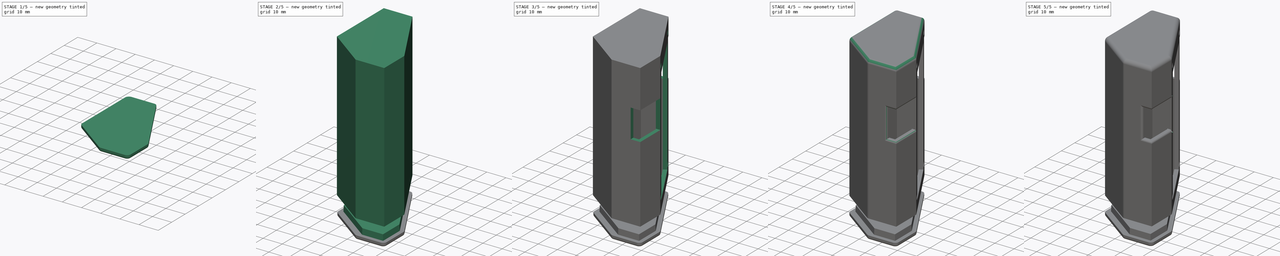
[diagram: build sequence overview — one tinted view per stage of 5, left to right]
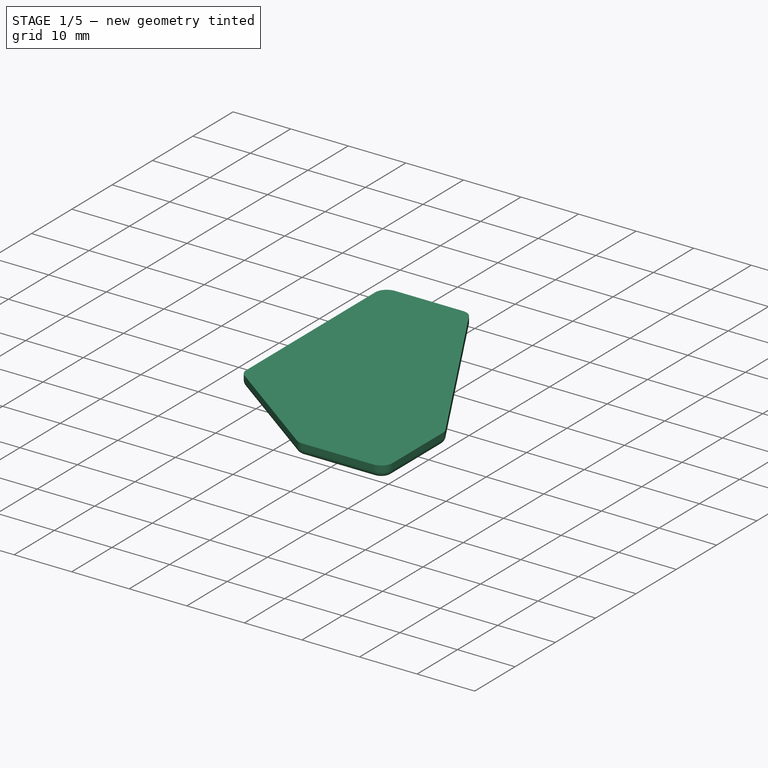
[diagram: stage 1 of 5 — iso view after this stage's code; geometry added in this stage tinted green]
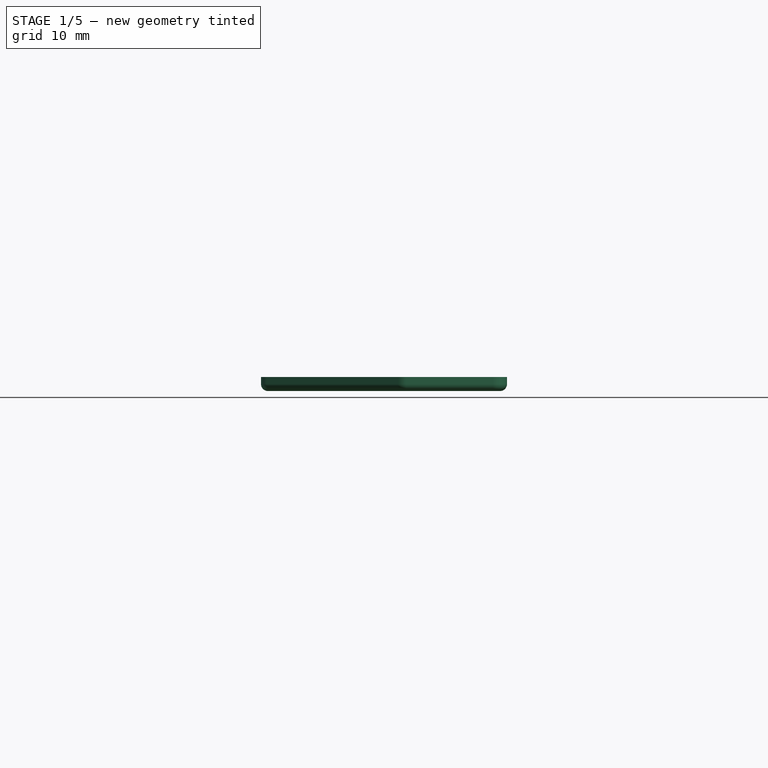
[diagram: stage 1 of 5 — front view after this stage's code; geometry added in this stage tinted green]
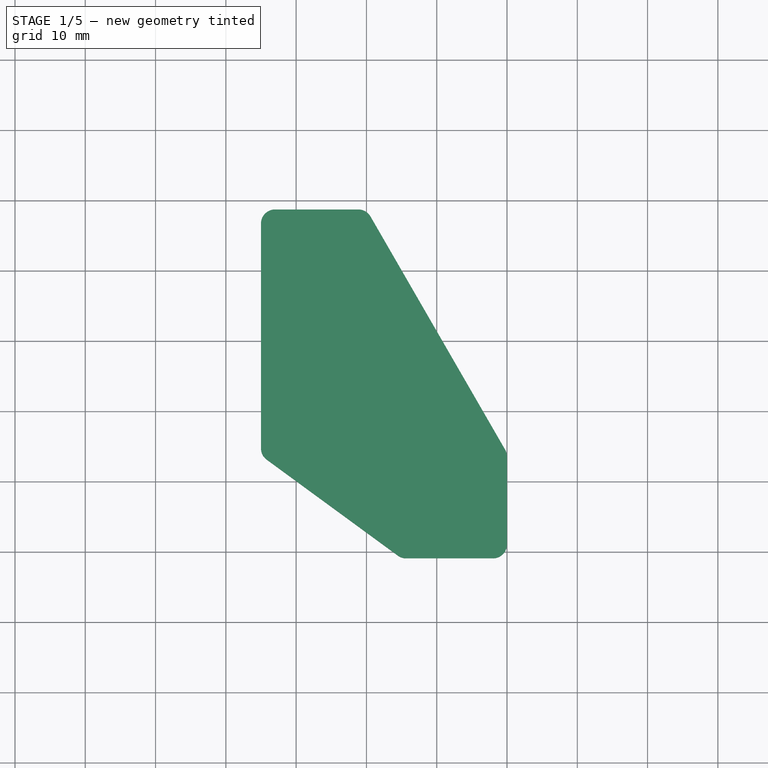
[diagram: stage 1 of 5 — top view after this stage's code; geometry added in this stage tinted green]
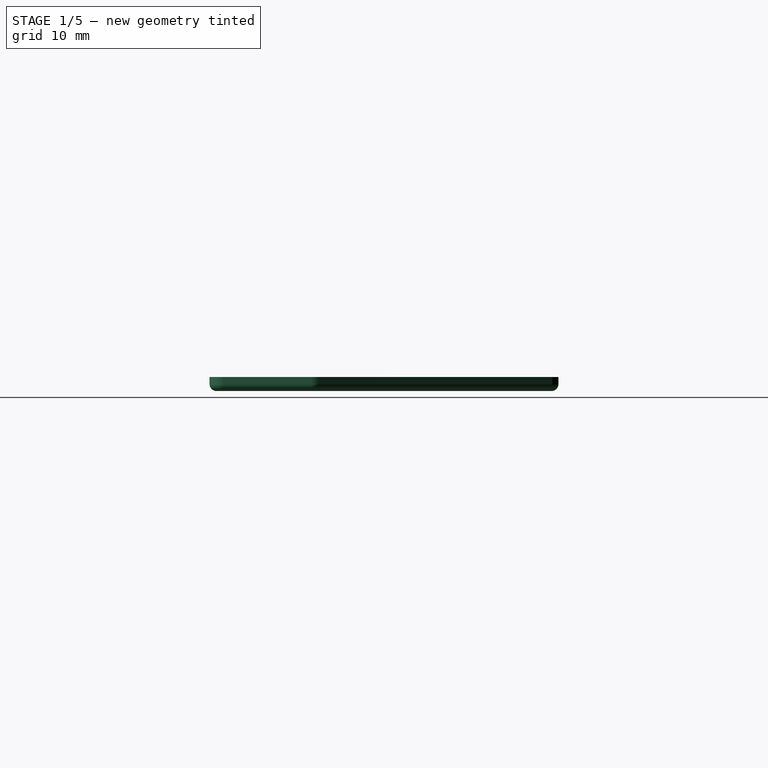
[diagram: stage 1 of 5 — right view after this stage's code; geometry added in this stage tinted green]
FCSTD DOCUMENT  (FreeCAD 0.19R21329 (Git))
Label: ePaperCalendar_Box
License: All rights reserved
LicenseURL: http://en.wikipedia.org/wiki/All_rights_reserved
objects: Sketcher::SketchObject×8, Part::Fillet×7, PartDesign::Pocket×5, PartDesign::Pad×2, PartDesign::Body×2, Spreadsheet::Sheet×1, PartDesign::ShapeBinder×1, Part::Extrusion×1
note: 33 computed .brp shape members not serialized (recipe doc carries the construction recipe); baked Part::Feature solids carry a one-line shape summary decoded from their .brp

FEATURE [Sketcher::SketchObject] Sketch008  label="Sketch_Base"
  AttachmentOffset = pos=(0,0,-10) rot=(0,0,1;0rad)
  MapMode = 5
  Placement = pos=(0,0,-10) rot=(0,0,1;0rad)
  Support = -> [XY_Plane001]
  expr: Constraints[9] = Sketch.Constraints[9]
  expr: Constraints[10] = Sketch.Constraints[10]
  expr: Constraints[13] = Sketch.Constraints[13]
  expr: Constraints[15] = Sketch.Constraints[15]
  expr: Constraints[16] = Sketch.Constraints[16]
  sketch-geometry (6):
    g0: LineSegment StartX=-15 StartY=28.7253 StartZ=0 EndX=-15 EndY=-6.27467 EndZ=0
    g1: LineSegment StartX=5 StartY=-20.9157 StartZ=0 EndX=20 EndY=-20.9157 EndZ=0
    g2: LineSegment StartX=20 StartY=-20.9157 StartZ=0 EndX=20 EndY=-5.91569 EndZ=0
    g3: LineSegment StartX=20 StartY=-5.91569 StartZ=0 EndX=0 EndY=28.7253 EndZ=0
    g4: LineSegment StartX=0 StartY=28.7253 StartZ=0 EndX=-15 EndY=28.7253 EndZ=0
    g5: LineSegment StartX=-15 StartY=-6.27467 StartZ=0 EndX=5 EndY=-20.9157 EndZ=0
  constraints (17):
    c: Vertical(g0)
    c: Horizontal(g1)
    c: Coincident(g1,g2)
    c: Vertical(g2)
    c: Coincident(g2,g3)
    c: PointOnObject(g3,g-2)
    c: Coincident(g3,g4)
    c: Coincident(g4,g0)
    c: Horizontal(g4)
    c: Angle(g3,g-1) = 1.0472
    c: Distance(g3) = 40
    c: Coincident(g1,g5)
    c: Coincident(g0,g5)
    c: Distance(g0,g3) = 15
    c: Equal(g2,g4)
    c: Distance(g0) = 35
    c: Distance(g1) = 15
FEATURE [PartDesign::Pad] Pad002
  Length = 2
  Length2 = 100
  Profile = -> Sketch008
  Type = 0
FEATURE [Part::Fillet] Fillet005
  Base = -> Pad002
  Edges = 6 edges r=2: [Edge1,Edge2,Edge5,Edge8,Edge11,Edge14]
FEATURE [Part::Fillet] Fillet006
  Base = -> Fillet005
  Edges = 12 edges r=1: [Edge1,Edge5,Edge6,Edge7,Edge8,Edge9,Edge10,Edge11,Edge12,Edge13,Edge14,Edge15]
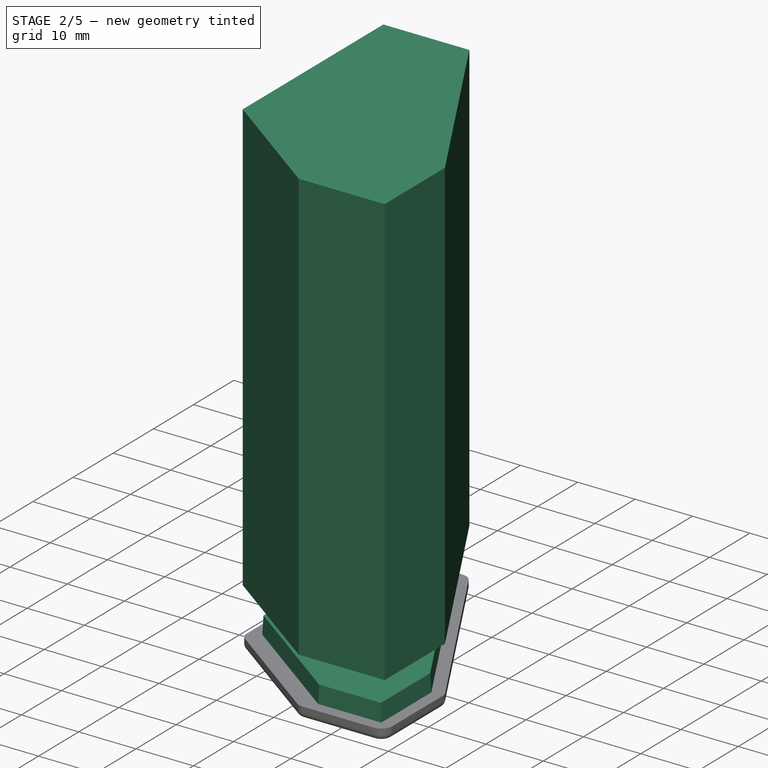
[diagram: stage 2 of 5 — iso view after this stage's code; geometry added in this stage tinted green]
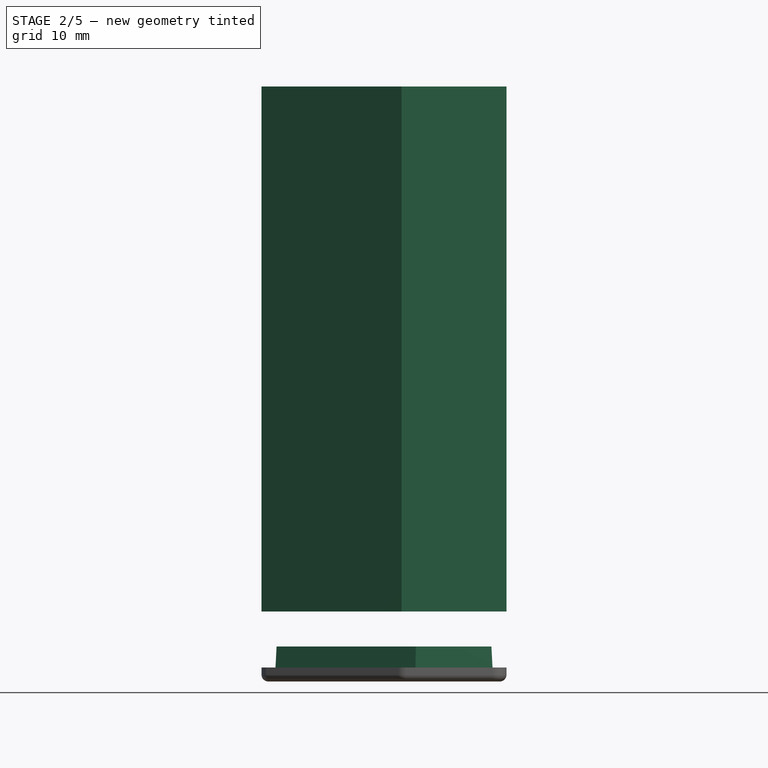
[diagram: stage 2 of 5 — front view after this stage's code; geometry added in this stage tinted green]
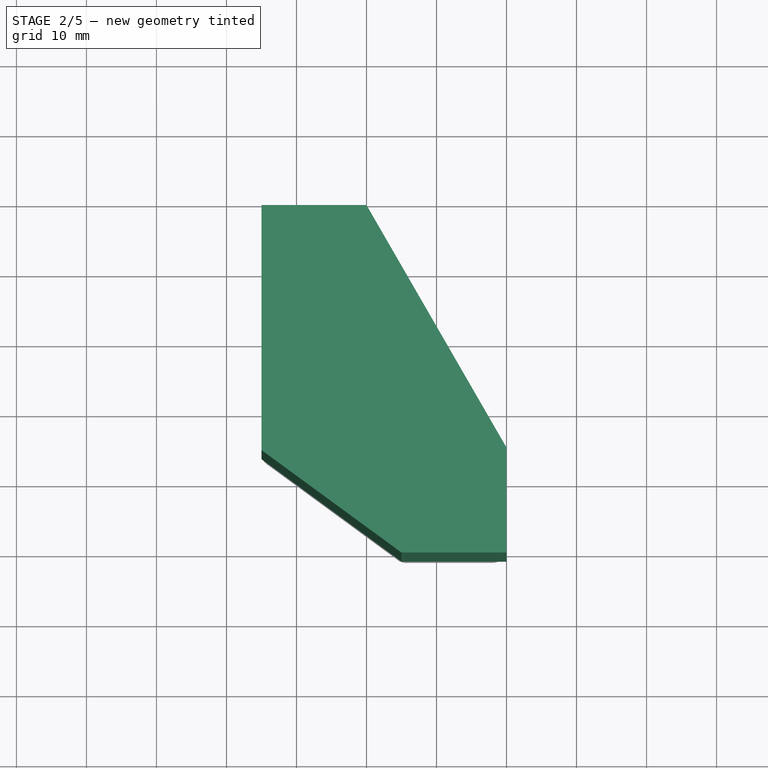
[diagram: stage 2 of 5 — top view after this stage's code; geometry added in this stage tinted green]
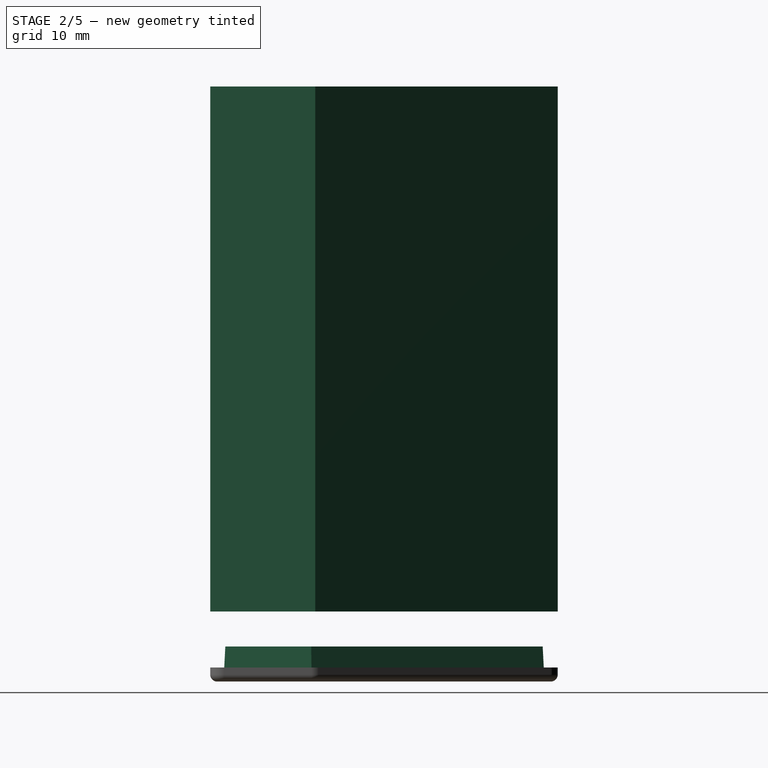
[diagram: stage 2 of 5 — right view after this stage's code; geometry added in this stage tinted green]
FEATURE [Sketcher::SketchObject] Sketch  label="Sketch_Side_Pad"
  sketch-geometry (6):
    g0: LineSegment StartX=-15 StartY=28.7253 StartZ=0 EndX=-15 EndY=-6.27467 EndZ=0
    g1: LineSegment StartX=5 StartY=-20.9157 StartZ=0 EndX=20 EndY=-20.9157 EndZ=0
    g2: LineSegment StartX=20 StartY=-20.9157 StartZ=0 EndX=20 EndY=-5.91569 EndZ=0
    g3: LineSegment StartX=20 StartY=-5.91569 StartZ=0 EndX=0 EndY=28.7253 EndZ=0
    g4: LineSegment StartX=0 StartY=28.7253 StartZ=0 EndX=-15 EndY=28.7253 EndZ=0
    g5: LineSegment StartX=-15 StartY=-6.27467 StartZ=0 EndX=5 EndY=-20.9157 EndZ=0
  constraints (17):
    c: Vertical(g0)
    c: Horizontal(g1)
    c: Coincident(g1,g2)
    c: Vertical(g2)
    c: Coincident(g2,g3)
    c: PointOnObject(g3,g-2)
    c: Coincident(g3,g4)
    c: Coincident(g4,g0)
    c: Horizontal(g4)
    c: Angle(g3,g-1) = 1.0472
    c: Distance(g3) = 40
    c: Coincident(g1,g5)
    c: Coincident(g0,g5)
    c: Distance(g0,g3) = 15
    c: Equal(g2,g4)
    c: Distance(g0) = 35
    c: Distance(g1) = 15
FEATURE [PartDesign::Pad] Pad
  Length = 75
  Length2 = 100
  Profile = -> Sketch
  Type = 0
FEATURE [Sketcher::SketchObject] Sketch001  label="Sketch_Side_Pocket"
  ExternalGeometry = -> [Sketch]
  MapMode = 5
  Placement = pos=(0,0,0) rot=(1,0,0;3.14159rad)
  Support = -> [Pad]
  expr: Constraints[12] = <<vars>>.wall_thick
  expr: Constraints[16] = <<vars>>.wall_thick
  expr: Constraints[11] = <<vars>>.wall_thick
  expr: Constraints[19] = <<vars>>.wall_thick
  expr: Constraints[20] = <<vars>>.wall_thick
  expr: Constraints[17] = <<vars>>.wall_thick
  sketch-geometry (7):
    g0: LineSegment StartX=-13 StartY=4.27467 StartZ=0 EndX=7 EndY=18.9157 EndZ=0
    g1: LineSegment StartX=7 StartY=18.9157 StartZ=0 EndX=18 EndY=18.9157 EndZ=0
    g2: LineSegment StartX=18 StartY=18.9157 StartZ=0 EndX=18 EndY=6.45159 EndZ=0
    g3: LineSegment StartX=18 StartY=6.45159 StartZ=0 EndX=-1.1547 EndY=-26.7253 EndZ=0
    g4: LineSegment StartX=-1.1547 StartY=-26.7253 StartZ=0 EndX=-13 EndY=-26.7253 EndZ=0
    g5: LineSegment StartX=-13 StartY=-26.7253 StartZ=0 EndX=-13 EndY=4.27467 EndZ=0
    g6: LineSegment [constr] StartX=15.4228 StartY=1.98767 StartZ=0 EndX=17.1548 EndY=0.987675 EndZ=0
  constraints (21):
    c: Coincident(g0,g1)
    c: Coincident(g1,g2)
    c: Coincident(g2,g3)
    c: Coincident(g3,g4)
    c: Horizontal(g4)
    c: Coincident(g4,g5)
    c: Coincident(g5,g0)
    c: Parallel(g3,g-3)
    c: Parallel(g5,g-6)
    c: Parallel(g0,g-5)
    c: Parallel(g2,g-4)
    c: DistanceX(g-6,g0) = 2
    c: DistanceY(g-7,g4) = 2
    c: PointOnObject(g6,g-3)
    c: PointOnObject(g6,g3)
    c: Perpendicular(g-3,g6)
    c: Distance(g6) = 2
    c: DistanceX(g-5,g0) = 2
    c: Parallel(g1,g-8)
    c: DistanceY(g0,g-8) = 2
    c: DistanceX(g1,g-8) = 2
FEATURE [Spreadsheet::Sheet] Spreadsheet  label="vars"
  cells = A1=wall thickness; B1(wall_thick)=2; A2=screen fixation hole inner diam; B2(screen_fix_hole_inner)=2.5; A3=screen fixation hole outer diam; B3(screen_fix_hole_outer)=3.5
FEATURE [PartDesign::Pocket] Pocket
  BaseFeature = -> Pad
  Length = 73
  Length2 = 100
  Profile = -> Sketch001
  Type = 0
FEATURE [PartDesign::ShapeBinder] ShapeBinder  label="ShapeBinder_Sketch_Side_Pocket"
  Placement = pos=(0,0,0) rot=(1,0,0;3.14159rad)
  Support = -> [Sketch001]
  TraceSupport = false
FEATURE [Sketcher::SketchObject] Sketch009  label="Sketch_Insert"
  ExternalGeometry = -> [ShapeBinder]
  MapMode = 5
  Placement = pos=(0,0,-8) rot=(0,0,1;0rad)
  Support = -> [Pad002]
  sketch-geometry (6):
    g0: LineSegment StartX=-13 StartY=-4.27467 StartZ=0 EndX=7 EndY=-18.9157 EndZ=0
    g1: LineSegment StartX=7 StartY=-18.9157 StartZ=0 EndX=18 EndY=-18.9157 EndZ=0
    g2: LineSegment StartX=18 StartY=-18.9157 StartZ=0 EndX=18 EndY=-6.45159 EndZ=0
    g3: LineSegment StartX=18 StartY=-6.45159 StartZ=0 EndX=-1.1547 EndY=26.7253 EndZ=0
    g4: LineSegment StartX=-1.1547 StartY=26.7253 StartZ=0 EndX=-13 EndY=26.7253 EndZ=0
    g5: LineSegment StartX=-13 StartY=26.7253 StartZ=0 EndX=-13 EndY=-4.27467 EndZ=0
  constraints (12):
    c: Coincident(g0,g1)
    c: Coincident(g1,g2)
    c: Coincident(g2,g3)
    c: Coincident(g3,g4)
    c: Coincident(g4,g5)
    c: Coincident(g5,g0)
    c: Coincident(g0,g-4)
    c: Coincident(g1,g-5)
    c: Coincident(g2,g-6)
    c: Coincident(g3,g-7)
    c: Coincident(g4,g-8)
    c: Coincident(g0,g-8)
FEATURE [PartDesign::Body] Body001  label="Body_LID"
  Group = -> [Sketch008,Pad002,Sketch009,ShapeBinder]
  Origin = -> Origin001
  Tip = -> Pad002
FEATURE [Part::Extrusion] Extrude
  Base = -> Sketch009
  Dir = (0,0,1)
  DirMode = 2
  FaceMakerClass = Part::FaceMakerBullseye
  LengthFwd = 3
  LengthRev = 0
  Solid = true
  Symmetric = false
  TaperAngle = -3
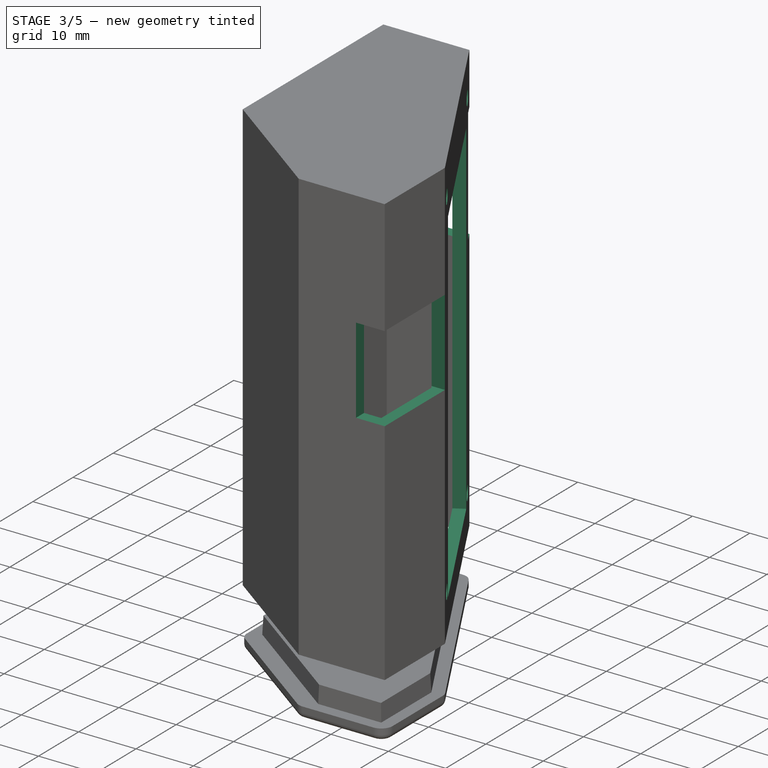
[diagram: stage 3 of 5 — iso view after this stage's code; geometry added in this stage tinted green]
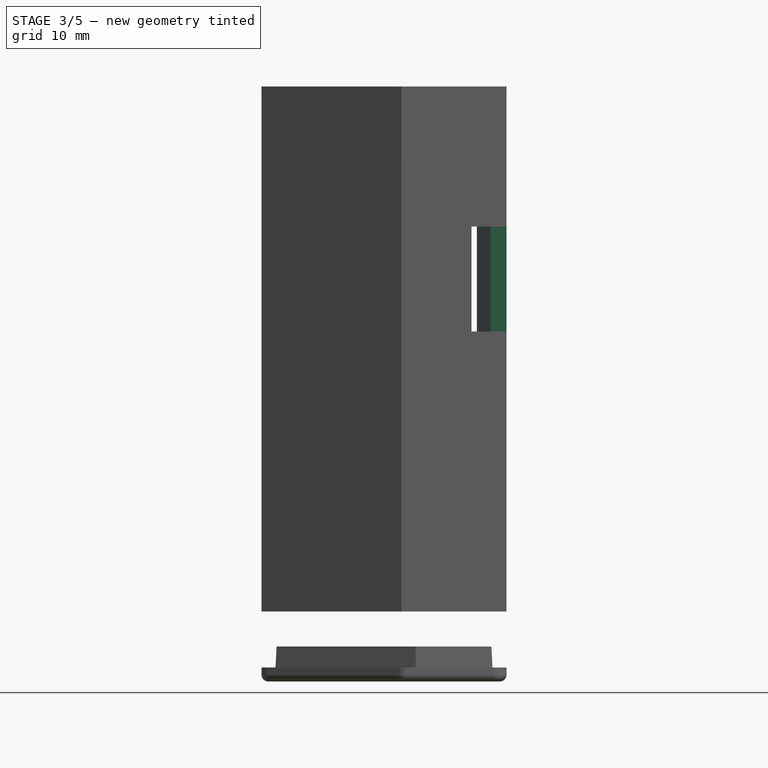
[diagram: stage 3 of 5 — front view after this stage's code; geometry added in this stage tinted green]
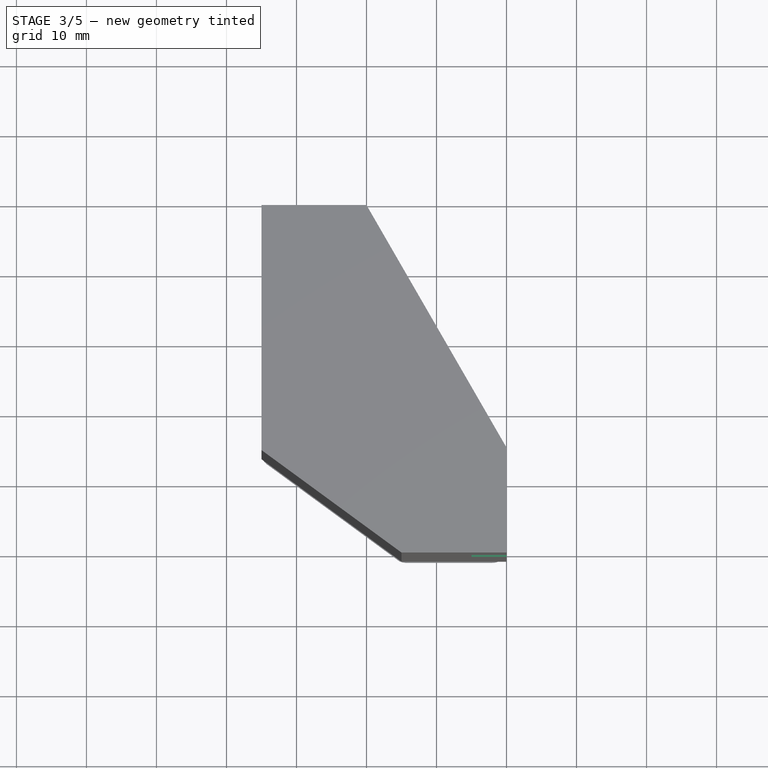
[diagram: stage 3 of 5 — top view after this stage's code; geometry added in this stage tinted green]
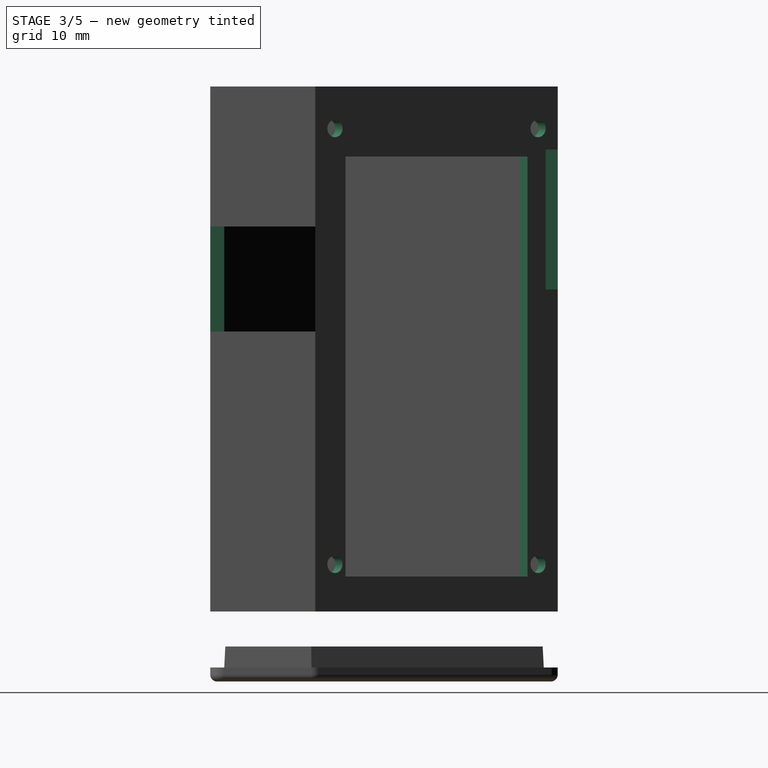
[diagram: stage 3 of 5 — right view after this stage's code; geometry added in this stage tinted green]
FEATURE [Sketcher::SketchObject] Sketch002  label="Sketch_Screen_Pocket"
  ExternalGeometry = -> [Pocket]
  MapMode = 5
  Placement = pos=(12.4384,7.18133,0) rot=(0.377964,0.654654,0.654654;2.41886rad)
  Support = -> [Pocket]
  expr: Constraints[12] = <<vars>>.screen_fix_hole_inner
  expr: Constraints[16] = <<vars>>.screen_fix_hole_outer / 2
  expr: Constraints[18] = <<vars>>.screen_fix_hole_outer / 2
  expr: Constraints[20] = <<vars>>.screen_fix_hole_outer / 2
  expr: Constraints[21] = -<<vars>>.screen_fix_hole_outer / 2
  expr: Constraints[22] = <<vars>>.screen_fix_hole_outer / 2
  expr: Constraints[23] = -<<vars>>.screen_fix_hole_outer / 2
  sketch-geometry (8):
    g0: LineSegment StartX=-10.1231 StartY=65 StartZ=0 EndX=19.8769 EndY=65 EndZ=0
    g1: LineSegment StartX=19.8769 StartY=65 StartZ=0 EndX=19.8769 EndY=5 EndZ=0
    g2: LineSegment StartX=19.8769 StartY=5 StartZ=0 EndX=-10.1231 EndY=5 EndZ=0
    g3: LineSegment StartX=-10.1231 StartY=5 StartZ=0 EndX=-10.1231 EndY=65 EndZ=0
    g4: Circle CenterX=-11.8731 CenterY=69 CenterZ=0 NormalX=0 NormalY=0 NormalZ=1 AngleXU=0 Radius=1.25
    g5: Circle CenterX=21.6269 CenterY=6.75 CenterZ=0 NormalX=0 NormalY=0 NormalZ=1 AngleXU=0 Radius=1.25
    g6: Circle CenterX=-11.8731 CenterY=6.75 CenterZ=0 NormalX=0 NormalY=0 NormalZ=1 AngleXU=0 Radius=1.25
    g7: Circle CenterX=21.6269 CenterY=69 CenterZ=0 NormalX=0 NormalY=0 NormalZ=1 AngleXU=0 Radius=1.25
  constraints (24):
    c: Coincident(g0,g1)
    c: Coincident(g1,g2)
    c: Coincident(g2,g3)
    c: Coincident(g3,g0)
    c: Horizontal(g0)
    c: Horizontal(g2)
    c: Vertical(g1)
    c: Vertical(g3)
    c: Distance(g0) = 30
    c: Distance(g1) = 60
    c: DistanceY(g0,g-4) = 10
    c: DistanceX(g-4,g0) = 5
    c: Diameter(g4) = 2.5
    c: Equal(g4,g5) = 2.5
    c: Equal(g4,g6) = 2.5
    c: Equal(g4,g7) = 2.5
    c: DistanceX(g4,g0) = 1.75
    c: DistanceY(g4,g0) = -4
    c: DistanceX(g0,g7) = 1.75
    c: DistanceY(g0,g7) = 4
    c: DistanceX(g6,g2) = 1.75
    c: DistanceY(g6,g2) = -1.75
    c: DistanceX(g1,g5) = 1.75
    c: DistanceY(g5,g1) = -1.75
FEATURE [PartDesign::Pocket] Pocket001
  BaseFeature = -> Pocket
  Length = 5
  Length2 = 100
  Profile = -> Sketch002
  Type = 0
FEATURE [Sketcher::SketchObject] Sketch004  label="Sketch_Hole_USB"
  ExternalGeometry = -> [Pocket001]
  MapMode = 5
  Placement = pos=(20,0,0) rot=(0.57735,0.57735,0.57735;2.0944rad)
  Support = -> [Pocket001]
  sketch-geometry (4):
    g0: LineSegment StartX=-20.9157 StartY=55 StartZ=0 EndX=-5.91569 EndY=55 EndZ=0
    g1: LineSegment StartX=-5.91569 StartY=55 StartZ=0 EndX=-5.91569 EndY=40 EndZ=0
    g2: LineSegment StartX=-5.91569 StartY=40 StartZ=0 EndX=-20.9157 EndY=40 EndZ=0
    g3: LineSegment StartX=-20.9157 StartY=40 StartZ=0 EndX=-20.9157 EndY=55 EndZ=0
  constraints (12):
    c: Coincident(g0,g1)
    c: Coincident(g1,g2)
    c: Coincident(g2,g3)
    c: Coincident(g3,g0)
    c: Horizontal(g0)
    c: Horizontal(g2)
    c: Vertical(g1)
    c: Vertical(g3)
    c: Distance(g3) = 15
    c: Distance(g0) = 15
    c: DistanceY(g0,g-4) = 10
    c: DistanceX(g0,g-3) = 0
FEATURE [Sketcher::SketchObject] Sketch005  label="Sketch_Hole_Buttons"
  ExternalGeometry = -> [Pocket001]
  MapMode = 5
  Placement = pos=(0,28.7253,0) rot=(0,0.707107,0.707107;3.14159rad)
  Support = -> [Pocket001]
  sketch-geometry (4):
    g0: LineSegment StartX=-1 StartY=46 StartZ=0 EndX=9 EndY=46 EndZ=0
    g1: LineSegment StartX=9 StartY=46 StartZ=0 EndX=9 EndY=66 EndZ=0
    g2: LineSegment StartX=9 StartY=66 StartZ=0 EndX=-1 EndY=66 EndZ=0
    g3: LineSegment StartX=-1 StartY=66 StartZ=0 EndX=-1 EndY=46 EndZ=0
  constraints (12):
    c: Coincident(g0,g1)
    c: Coincident(g1,g2)
    c: Coincident(g2,g3)
    c: Coincident(g3,g0)
    c: Horizontal(g0)
    c: Horizontal(g2)
    c: Vertical(g1)
    c: Vertical(g3)
    c: Distance(g3) = 20
    c: Distance(g0) = 10
    c: DistanceY(g-3,g1) = 1
    c: DistanceX(g-1,g2) = -1
FEATURE [PartDesign::Pocket] Pocket002
  BaseFeature = -> Pocket001
  Length = 5
  Length2 = 100
  Profile = -> Sketch005
  Type = 2
FEATURE [PartDesign::Pocket] Pocket003
  BaseFeature = -> Pocket002
  Length = 5
  Length2 = 100
  Profile = -> Sketch004
  Type = 0
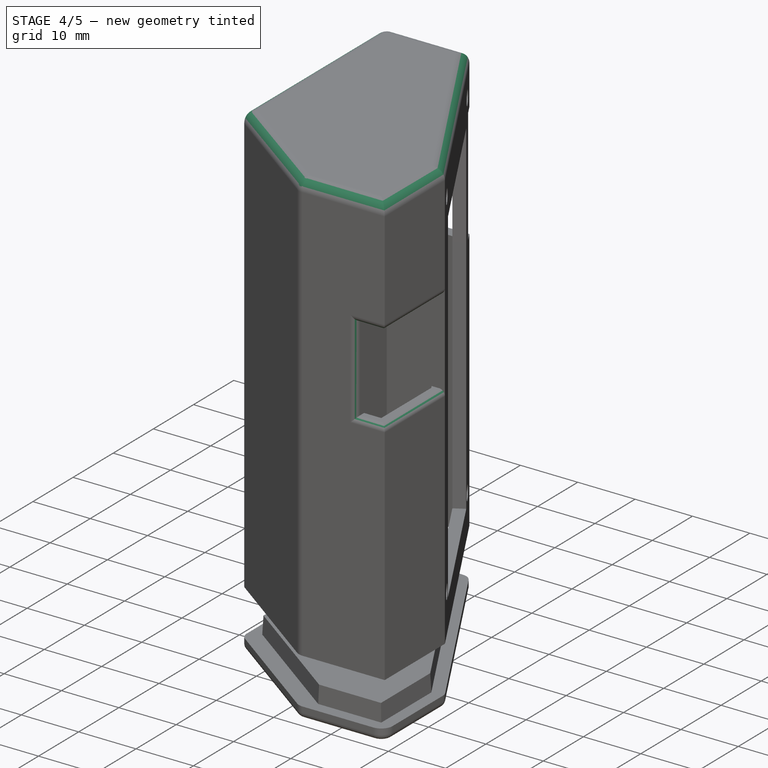
[diagram: stage 4 of 5 — iso view after this stage's code; geometry added in this stage tinted green]
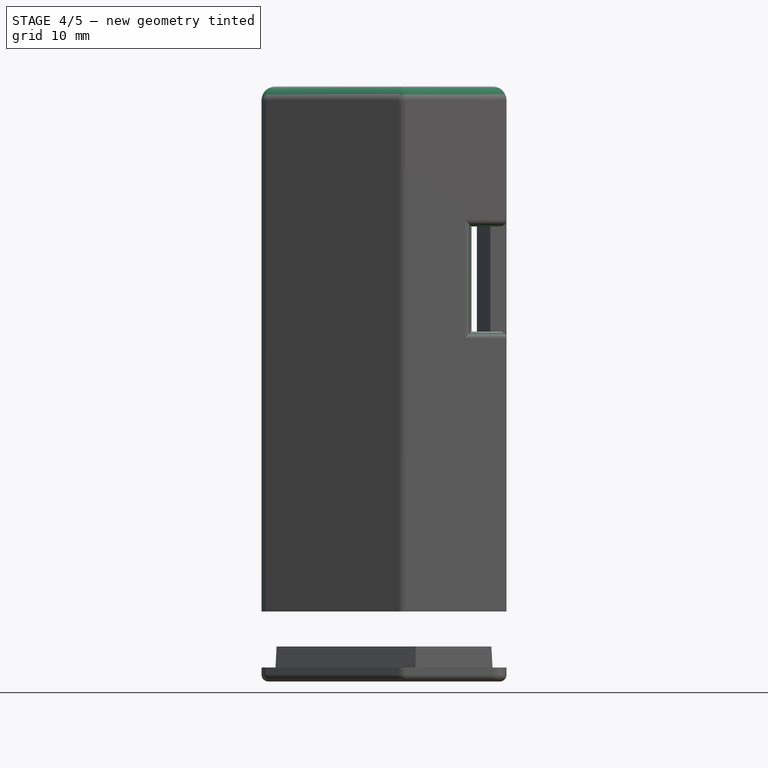
[diagram: stage 4 of 5 — front view after this stage's code; geometry added in this stage tinted green]
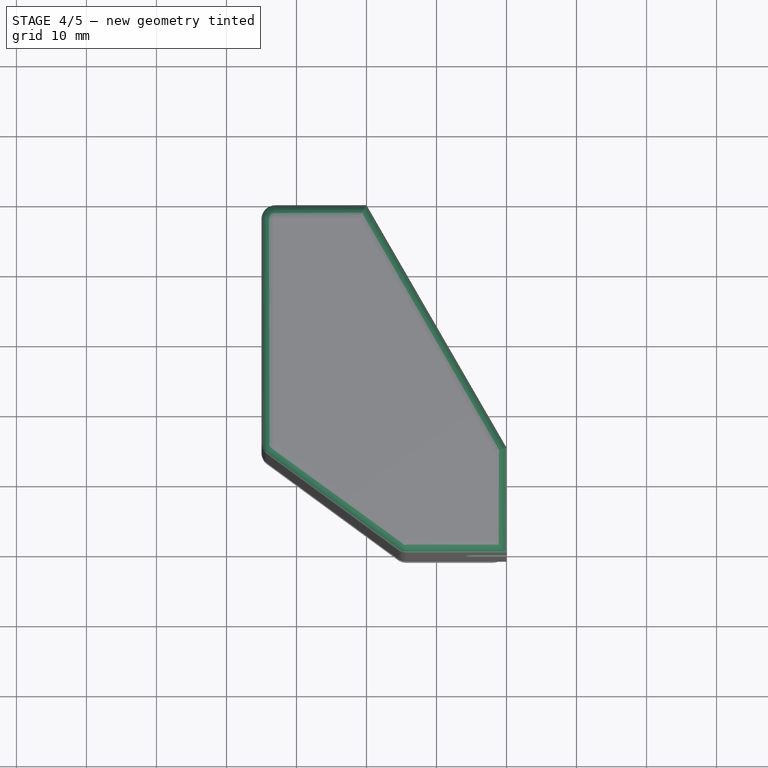
[diagram: stage 4 of 5 — top view after this stage's code; geometry added in this stage tinted green]
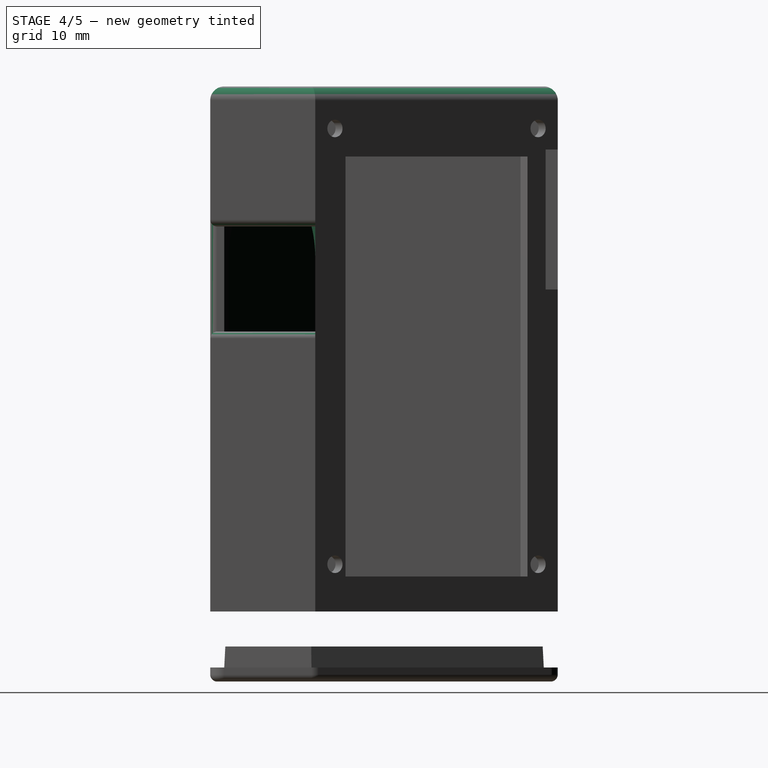
[diagram: stage 4 of 5 — right view after this stage's code; geometry added in this stage tinted green]
FEATURE [Sketcher::SketchObject] Sketch006  label="Sketch_Magnet_Pocket"
  MapMode = 5
  Placement = pos=(-6.57332,-8.97933,0) rot=(0.22522,0.68894,0.68894;2.69854rad)
  Support = -> [Pocket003]
  sketch-geometry (4):
    g0: ArcOfCircle CenterX=-4.27143 CenterY=50.5731 CenterZ=0 NormalX=0 NormalY=0 NormalZ=1 AngleXU=0 Radius=11.5 StartAngle=0 EndAngle=3.14159
    g1: ArcOfCircle CenterX=-4.27143 CenterY=23.5731 CenterZ=0 NormalX=0 NormalY=0 NormalZ=1 AngleXU=0 Radius=11.5 StartAngle=3.14159 EndAngle=6.28319
    g2: LineSegment StartX=-15.7714 StartY=50.5731 StartZ=0 EndX=-15.7714 EndY=23.5731 EndZ=0
    g3: LineSegment StartX=7.22857 StartY=50.5731 StartZ=0 EndX=7.22857 EndY=23.5731 EndZ=0
  constraints (8):
    c: Tangent(g0,g3) = 1.5708
    c: Tangent(g0,g2) = -1.5708
    c: Tangent(g2,g1) = -1.5708
    c: Tangent(g3,g1) = 1.5708
    c: Vertical(g2)
    c: Equal(g0,g1)
    c: Distance(g0,g0) = 23
    c: Distance(g0,g1) = 27
FEATURE [PartDesign::Pocket] Pocket004
  BaseFeature = -> Pocket003
  Length = 1.5
  Length2 = 100
  Profile = -> Sketch006
  Type = 0
FEATURE [PartDesign::Body] Body
  Group = -> [Sketch,Pad,Sketch001,Pocket,Sketch004,Sketch005,Pocket001,Pocket002,Pocket003,Sketch006,Pocket004]
  Origin = -> Origin
  Tip = -> Pocket004
FEATURE [Part::Fillet] Fillet
  Base = -> Pocket004
  Edges = 9 edges r=2: [Edge1,Edge2,Edge4,Edge6,Edge12,Edge14,Edge24,Edge25,Edge26]
FEATURE [Part::Fillet] Fillet001
  Base = -> Fillet
  Edges = 5 edges r=1: [Edge51,Edge54,Edge56,Edge57,Edge114]
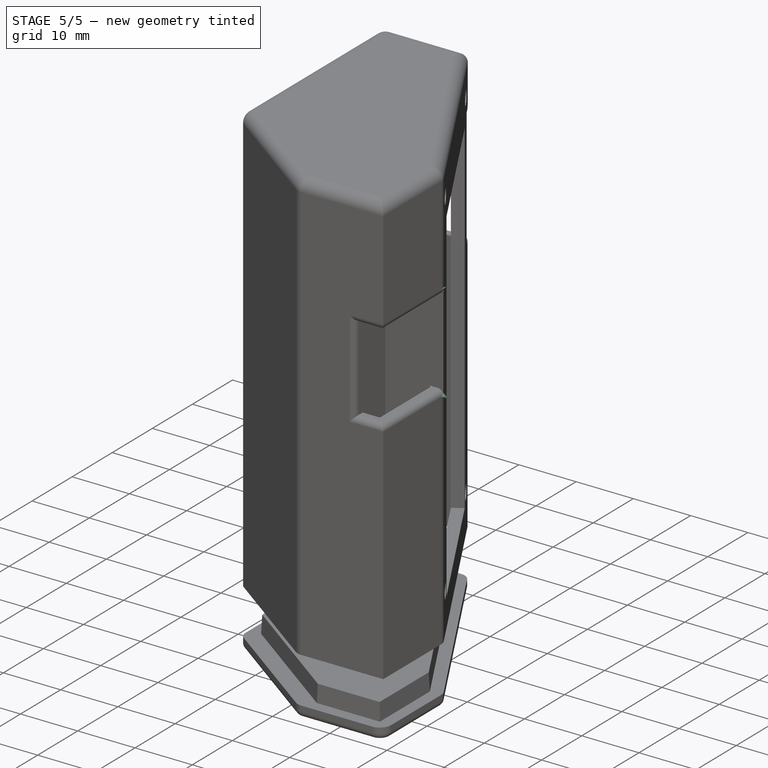
[diagram: stage 5 of 5 — iso view after this stage's code; geometry added in this stage tinted green]
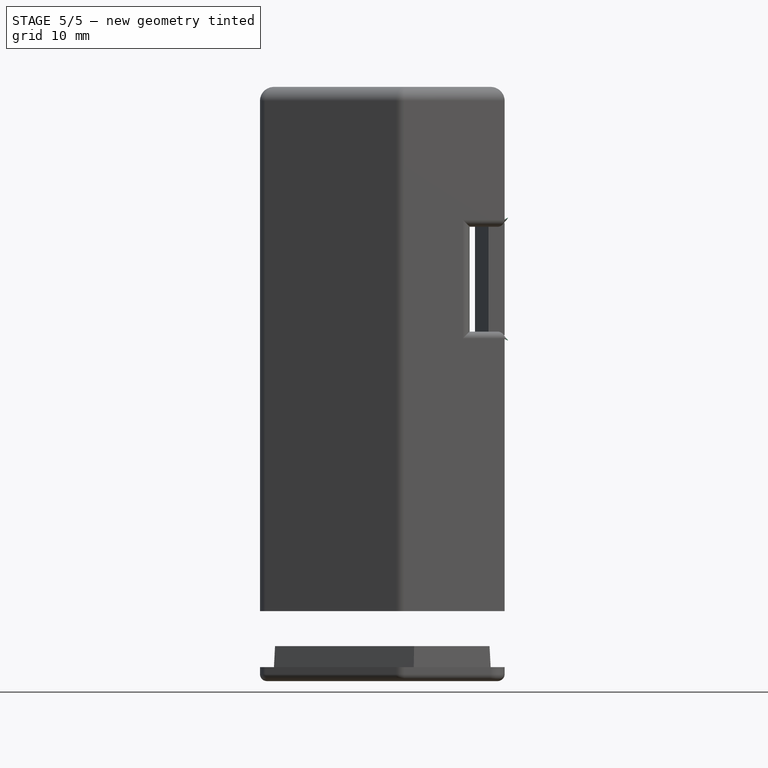
[diagram: stage 5 of 5 — front view after this stage's code; geometry added in this stage tinted green]
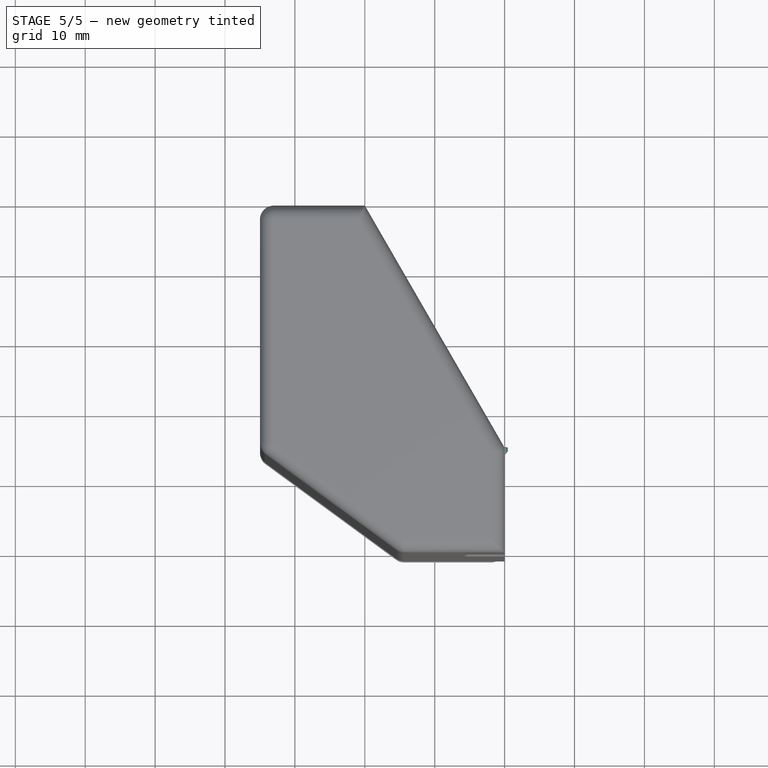
[diagram: stage 5 of 5 — top view after this stage's code; geometry added in this stage tinted green]
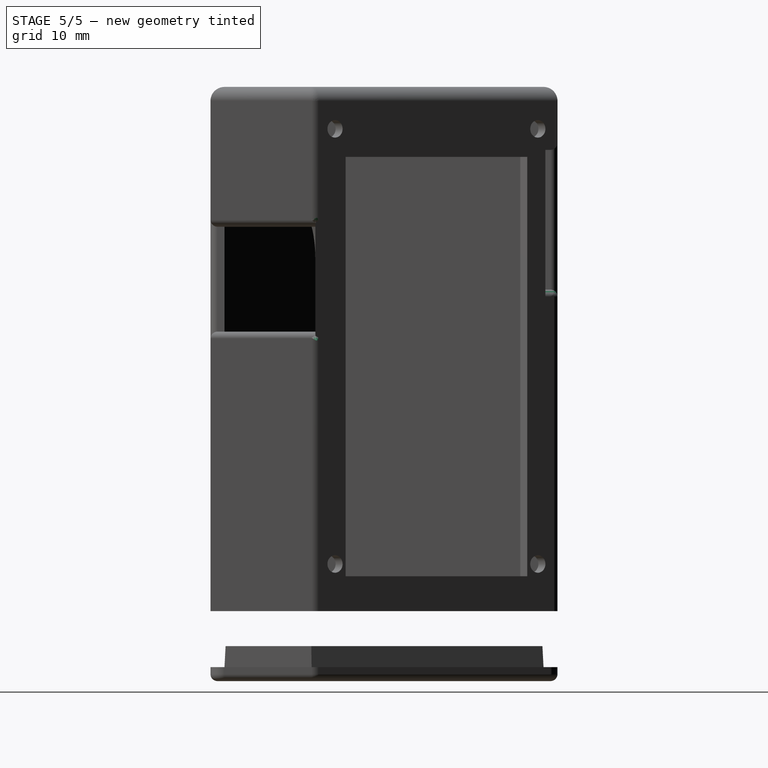
[diagram: stage 5 of 5 — right view after this stage's code; geometry added in this stage tinted green]
FEATURE [Part::Fillet] Fillet002
  Base = -> Fillet001
  Edges = 3 edges r=1: [Edge35,Edge36,Edge37]
FEATURE [Part::Fillet] Fillet003
  Base = -> Fillet002
  Edges = 2 edges r=2: [Edge5,Edge13]
FEATURE [Part::Fillet] Fillet004
  Base = -> Fillet003
  Edges = 1 edges r=1: [Edge15]
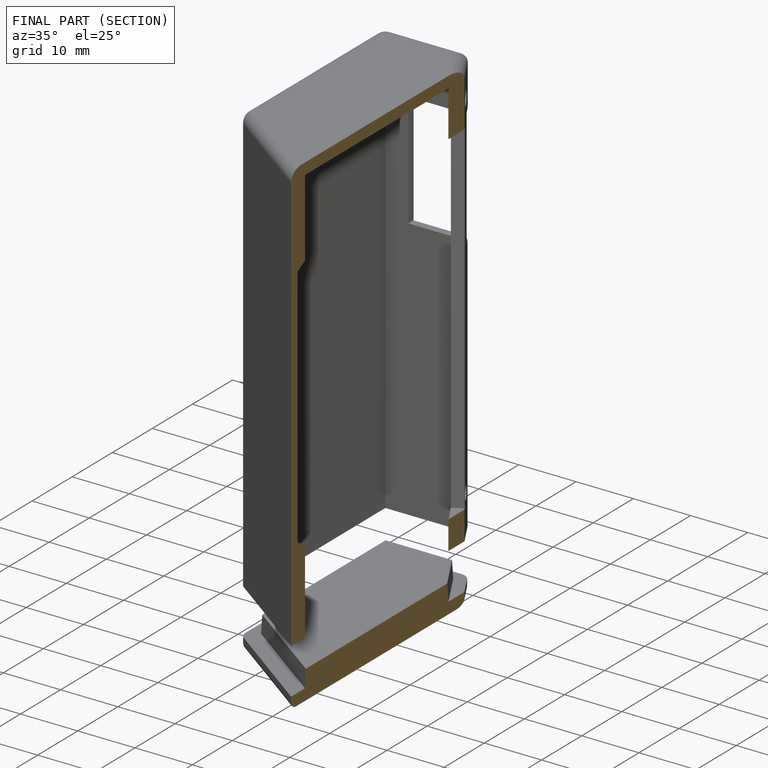
[diagram: finished part — half-section view (interior)]
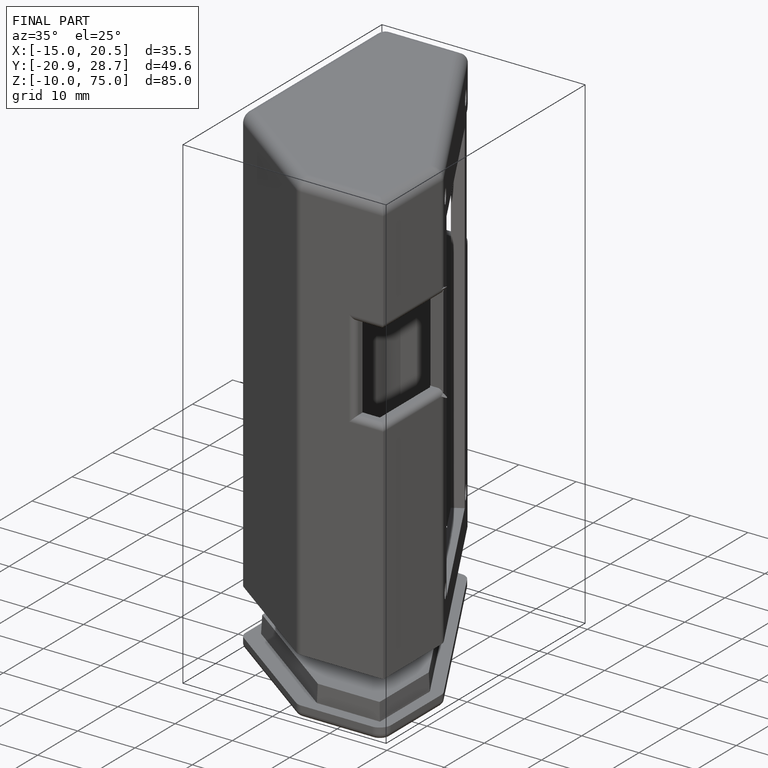
[diagram: finished part — iso view with bounding-box wireframe]
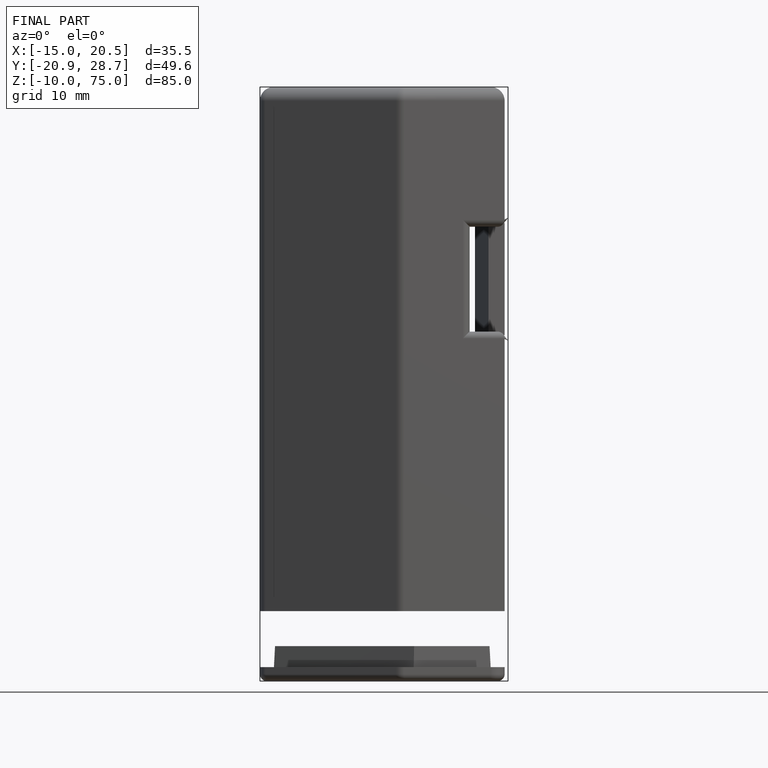
[diagram: finished part — front view with bounding-box wireframe]
